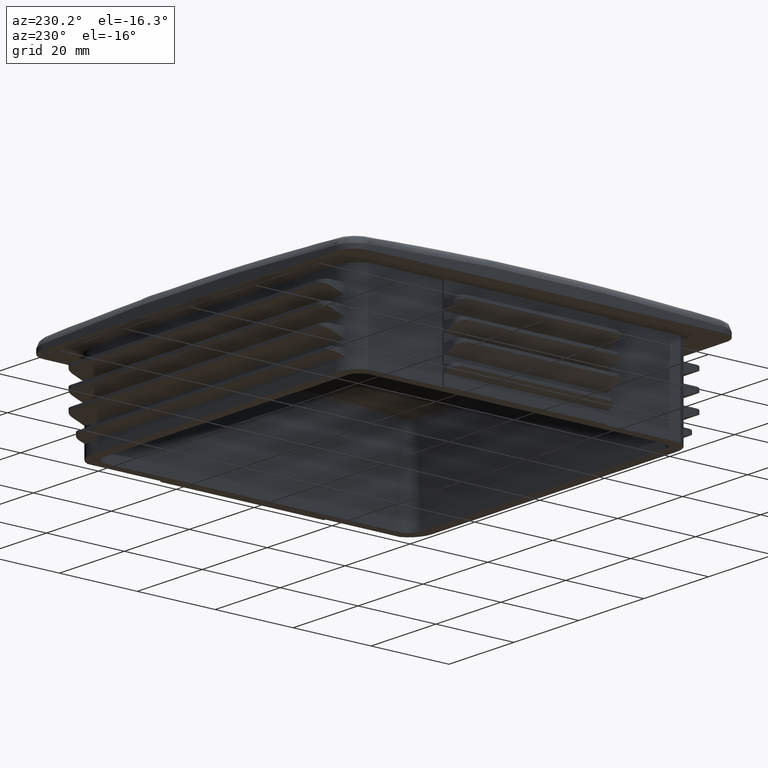
[diagram: clean part render]
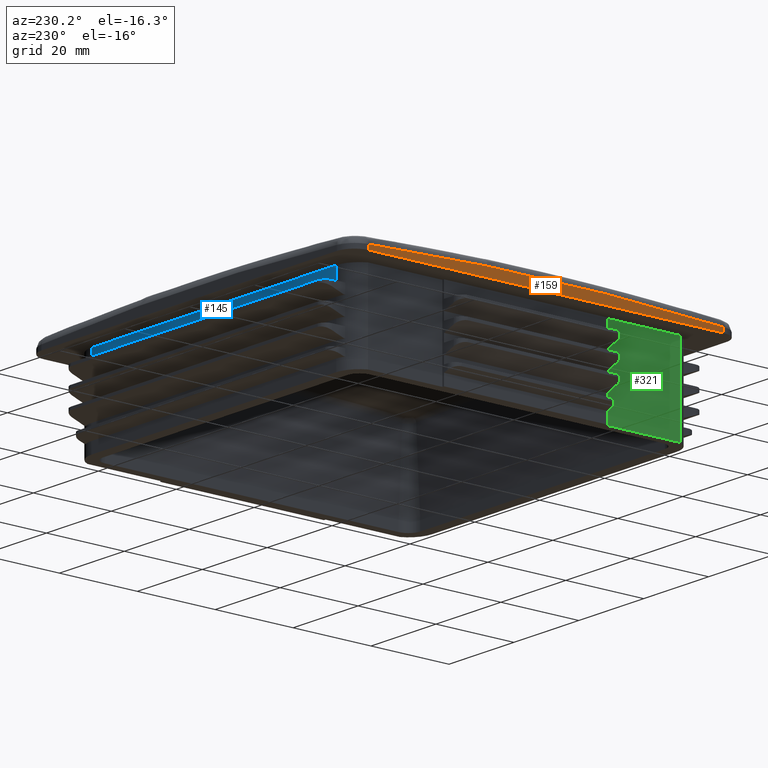
[diagram: same view with three faces highlighted in distinct colors, each labeled with its STEP entity id]
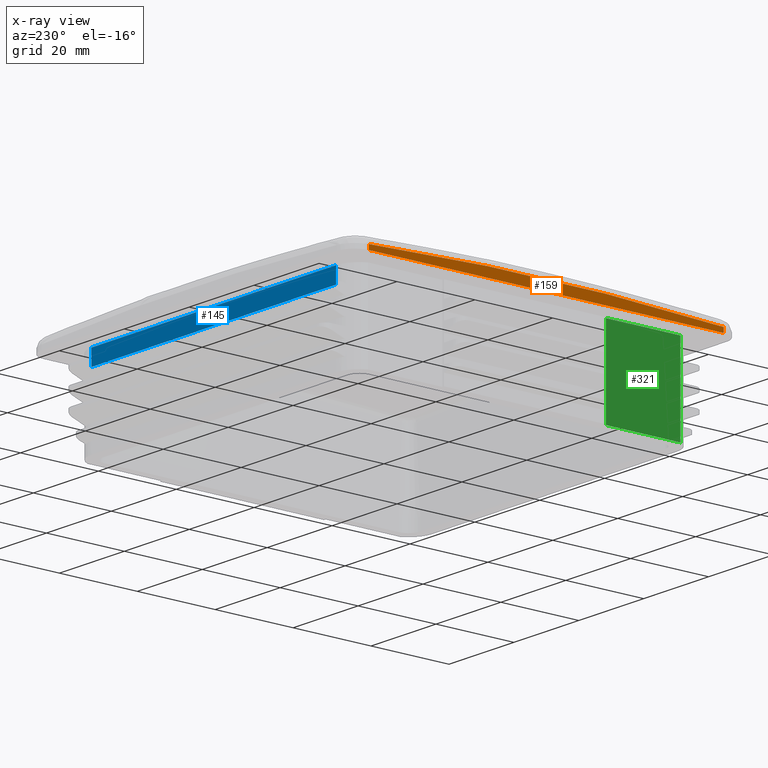
[diagram: x-ray of the same camera — body ghosted, the three highlighted faces saturated]
A machine part, auxiliary view with three faces highlighted in distinct colors.
The next image is the same camera in x-ray (body ghosted, the three faces saturated) — at least one of them is partly hidden behind the body in this view.
Their STEP definitions:

[orange] entity #159 — the highlighted planar face has unit normal (-1, 0, 0).
#159 = ADVANCED_FACE( '', ( #498 ), #499, .T. );
#498 = FACE_OUTER_BOUND( '', #2840, .T. );
#499 = PLANE( '', #2841 );
#2840 = EDGE_LOOP( '', ( #4062, #4063, #4064, #4065 ) );
#2841 = AXIS2_PLACEMENT_3D( '', #4066, #4067, #4068 );
#4062 = ORIENTED_EDGE( '', *, *, #5531, .T. );
#4063 = ORIENTED_EDGE( '', *, *, #5520, .T. );
#4064 = ORIENTED_EDGE( '', *, *, #5524, .F. );
#4065 = ORIENTED_EDGE( '', *, *, #5565, .T. );
#4066 = CARTESIAN_POINT( '', ( -50.0000000000000, 45.5000000000000, -181.938035759909 ) );
#4067 = DIRECTION( '', ( -1.00000000000000, 0.000000000000000, 0.000000000000000 ) );
#4068 = DIRECTION( '', ( 0.000000000000000, -1.00000000000000, 0.000000000000000 ) );
#5520 = EDGE_CURVE( '', #6260, #6255, #6264, .T. );
#5524 = EDGE_CURVE( '', #6270, #6255, #6271, .T. );
#5531 = EDGE_CURVE( '', #6282, #6260, #6283, .T. );
#5565 = EDGE_CURVE( '', #6270, #6282, #6339, .T. );
#6255 = VERTEX_POINT( '', #7961 );
#6260 = VERTEX_POINT( '', #8056 );
#6264 = B_SPLINE_CURVE_WITH_KNOTS( '', 3, ( #8081, #8082, #8083, #8084, #8085, #8086, #8087, #8088, #8089, #8090, #8091, #8092, #8093, #8094, #8095, #8096, #8097, #8098 ), .UNSPECIFIED., .F., .F., ( 4, 1, 2, 2, 2, 1, 1, 2, 2, 1, 4 ), ( 0.000000000000000, 0.0113850005789610, 0.0227700011579221, 0.0241931262302922, 0.0256162513026623, 0.0284625014474026, 0.0341550017368831, 0.0455400023158441, 0.0683100034737661, 0.0796950040527271, 0.0910800046316881 ), .UNSPECIFIED. );
#6270 = VERTEX_POINT( '', #8194 );
#6271 = LINE( '', #8195, #8196 );
#6282 = VERTEX_POINT( '', #8247 );
#6283 = LINE( '', #8248, #8249 );
#6339 = LINE( '', #8577, #8578 );
#7961 = CARTESIAN_POINT( '', ( -50.0000000000000, 45.5000000000000, 1.22391078343170 ) );
#8056 = CARTESIAN_POINT( '', ( -50.0000000000000, -45.5000000000000, 1.22391078343173 ) );
#8081 = CARTESIAN_POINT( '', ( -50.0000000000000, -45.5000000000000, 1.22391078343173 ) );
#8082 = CARTESIAN_POINT( '', ( -50.0000000000000, -41.7108058635564, 1.44192197895297 ) );
#8083 = CARTESIAN_POINT( '', ( -50.0000000000000, -34.1301384694667, 1.82357634414615 ) );
#8084 = CARTESIAN_POINT( '', ( -50.0000000000000, -26.5449088507306, 2.09639966199070 ) );
#8085 = CARTESIAN_POINT( '', ( -50.0000000000000, -22.2769317905215, 2.21919980063185 ) );
#8086 = CARTESIAN_POINT( '', ( -50.0000000000000, -21.8026942632821, 2.23241835932161 ) );
#8087 = CARTESIAN_POINT( '', ( -50.0000000000000, -20.8541834914221, 2.25800344500244 ) );
#8088 = CARTESIAN_POINT( '', ( -50.0000000000000, -20.3799085881958, 2.27036999615108 ) );
#8089 = CARTESIAN_POINT( '', ( -50.0000000000000, -18.9571281068513, 2.30618889102794 ) );
#8090 = CARTESIAN_POINT( '', ( -50.0000000000000, -16.1116470953440, 2.37270634191143 ) );
#8091 = CARTESIAN_POINT( '', ( -50.0000000000000, -9.47275102439743, 2.49207364158416 ) );
#8092 = CARTESIAN_POINT( '', ( -50.0000000000000, -3.78322800393381, 2.53295004672934 ) );
#8093 = CARTESIAN_POINT( '', ( -50.0000000000000, 7.59453940942068, 2.53281530598412 ) );
#8094 = CARTESIAN_POINT( '', ( -50.0000000000000, 15.1780127495984, 2.42353576095733 ) );
#8095 = CARTESIAN_POINT( '', ( -50.0000000000000, 26.5506709871140, 2.09619245207723 ) );
#8096 = CARTESIAN_POINT( '', ( -50.0000000000000, 34.1315926119991, 1.82349259552902 ) );
#8097 = CARTESIAN_POINT( '', ( -50.0000000000000, 41.7108142742815, 1.44192149504216 ) );
#8098 = CARTESIAN_POINT( '', ( -50.0000000000000, 45.5000000000000, 1.22391078343179 ) );
#8194 = CARTESIAN_POINT( '', ( -50.0000000000000, 45.5000000000000, -1.83231725690673E-015 ) );
#8195 = CARTESIAN_POINT( '', ( -50.0000000000000, 45.5000000000000, -181.938035759909 ) );
#8196 = VECTOR( '', #10727, 1000.00000000000 );
#8247 = CARTESIAN_POINT( '', ( -50.0000000000000, -45.5000000000000, 0.000000000000000 ) );
#8248 = CARTESIAN_POINT( '', ( -50.0000000000000, -45.5000000000000, -181.938035759909 ) );
#8249 = VECTOR( '', #10736, 1000.00000000000 );
#8577 = CARTESIAN_POINT( '', ( -50.0000000000000, 5.83930393559495E-032, 9.53662198039177E-016 ) );
#8578 = VECTOR( '', #10780, 1000.00000000000 );
#10727 = DIRECTION( '', ( 0.000000000000000, 0.000000000000000, 1.00000000000000 ) );
#10736 = DIRECTION( '', ( 0.000000000000000, 0.000000000000000, 1.00000000000000 ) );
#10780 = DIRECTION( '', ( 0.000000000000000, -1.00000000000000, 6.12303176911189E-017 ) );

[blue] entity #145 — the highlighted planar face has unit normal (0, 1, 0).
#145 = ADVANCED_FACE( '', ( #470 ), #471, .T. );
#470 = FACE_OUTER_BOUND( '', #2812, .T. );
#471 = PLANE( '', #2813 );
#2812 = EDGE_LOOP( '', ( #3916, #3917, #3918, #3919 ) );
#2813 = AXIS2_PLACEMENT_3D( '', #3920, #3921, #3922 );
#3916 = ORIENTED_EDGE( '', *, *, #5648, .F. );
#3917 = ORIENTED_EDGE( '', *, *, #5649, .T. );
#3918 = ORIENTED_EDGE( '', *, *, #5494, .T. );
#3919 = ORIENTED_EDGE( '', *, *, #5564, .F. );
#3920 = CARTESIAN_POINT( '', ( 37.7000000000000, 43.7000000000000, -22.0000000000000 ) );
#3921 = DIRECTION( '', ( 0.000000000000000, 1.00000000000000, 0.000000000000000 ) );
#3922 = DIRECTION( '', ( 1.00000000000000, 0.000000000000000, 0.000000000000000 ) );
#5494 = EDGE_CURVE( '', #6214, #6212, #6215, .T. );
#5564 = EDGE_CURVE( '', #6336, #6212, #6338, .T. );
#5648 = EDGE_CURVE( '', #6476, #6336, #6477, .T. );
#5649 = EDGE_CURVE( '', #6476, #6214, #6478, .T. );
#6212 = VERTEX_POINT( '', #7906 );
#6214 = VERTEX_POINT( '', #7908 );
#6215 = LINE( '', #7909, #7910 );
#6336 = VERTEX_POINT( '', #8573 );
#6338 = LINE( '', #8575, #8576 );
#6476 = VERTEX_POINT( '', #9204 );
#6477 = LINE( '', #9205, #9206 );
#6478 = LINE( '', #9207, #9208 );
#7906 = CARTESIAN_POINT( '', ( -37.7000000000000, 43.7000000000000, 0.000000000000000 ) );
#7908 = CARTESIAN_POINT( '', ( -37.7000000000000, 43.7000000000000, -4.00000000000000 ) );
#7909 = CARTESIAN_POINT( '', ( -37.7000000000000, 43.7000000000000, -22.0000000000000 ) );
#7910 = VECTOR( '', #10679, 1000.00000000000 );
#8573 = CARTESIAN_POINT( '', ( 37.7000000000000, 43.7000000000000, 0.000000000000000 ) );
#8575 = CARTESIAN_POINT( '', ( 37.7000000000000, 43.7000000000000, 0.000000000000000 ) );
#8576 = VECTOR( '', #10779, 1000.00000000000 );
#9204 = CARTESIAN_POINT( '', ( 37.7000000000000, 43.7000000000000, -4.00000000000000 ) );
#9205 = CARTESIAN_POINT( '', ( 37.7000000000000, 43.7000000000000, -22.0000000000000 ) );
#9206 = VECTOR( '', #10819, 1000.00000000000 );
#9207 = CARTESIAN_POINT( '', ( 37.7000000000000, 43.7000000000000, -4.00000000000000 ) );
#9208 = VECTOR( '', #10820, 1000.00000000000 );
#10679 = DIRECTION( '', ( 0.000000000000000, 0.000000000000000, 1.00000000000000 ) );
#10779 = DIRECTION( '', ( -1.00000000000000, 0.000000000000000, 0.000000000000000 ) );
#10819 = DIRECTION( '', ( 0.000000000000000, 0.000000000000000, 1.00000000000000 ) );
#10820 = DIRECTION( '', ( -1.00000000000000, 0.000000000000000, 2.55172454101166E-031 ) );

[green] entity #321 — the highlighted planar face has unit normal (1, 0, 0).
#321 = ADVANCED_FACE( '', ( #835 ), #836, .F. );
#835 = FACE_OUTER_BOUND( '', #3390, .T. );
#836 = PLANE( '', #3391 );
#3390 = EDGE_LOOP( '', ( #5399, #5400, #5401, #5402 ) );
#3391 = AXIS2_PLACEMENT_3D( '', #5403, #5404, #5405 );
#5399 = ORIENTED_EDGE( '', *, *, #5426, .T. );
#5400 = ORIENTED_EDGE( '', *, *, #5678, .F. );
#5401 = ORIENTED_EDGE( '', *, *, #5554, .F. );
#5402 = ORIENTED_EDGE( '', *, *, #6038, .T. );
#5403 = CARTESIAN_POINT( '', ( -43.2000000000000, -21.0000000000000, 0.000000000000000 ) );
#5404 = DIRECTION( '', ( 1.00000000000000, 5.83728203774415E-017, 0.000000000000000 ) );
#5405 = DIRECTION( '', ( -5.83728203774415E-017, 1.00000000000000, 0.000000000000000 ) );
#5426 = EDGE_CURVE( '', #6098, #6096, #6099, .T. );
#5554 = EDGE_CURVE( '', #6316, #6318, #6319, .T. );
#5678 = EDGE_CURVE( '', #6318, #6096, #6526, .T. );
#6038 = EDGE_CURVE( '', #6316, #6098, #7105, .T. );
#6096 = VERTEX_POINT( '', #7179 );
#6098 = VERTEX_POINT( '', #7181 );
#6099 = LINE( '', #7182, #7183 );
#6316 = VERTEX_POINT( '', #8545 );
#6318 = VERTEX_POINT( '', #8548 );
#6319 = LINE( '', #8549, #8550 );
#6526 = LINE( '', #9276, #9277 );
#7105 = LINE( '', #10504, #10505 );
#7179 = CARTESIAN_POINT( '', ( -43.2000000000000, -40.0979157616564, -22.0000000000000 ) );
#7181 = CARTESIAN_POINT( '', ( -43.2000000000000, -21.0000000000000, -22.0000000000000 ) );
#7182 = CARTESIAN_POINT( '', ( -43.2000000000000, -21.0000000000000, -22.0000000000000 ) );
#7183 = VECTOR( '', #10606, 1000.00000000000 );
#8545 = CARTESIAN_POINT( '', ( -43.2000000000000, -21.0000000000000, 0.000000000000000 ) );
#8548 = CARTESIAN_POINT( '', ( -43.2000000000000, -40.0979157616564, 0.000000000000000 ) );
#8549 = CARTESIAN_POINT( '', ( -43.2000000000000, -21.0000000000000, 0.000000000000000 ) );
#8550 = VECTOR( '', #10763, 1000.00000000000 );
#9276 = CARTESIAN_POINT( '', ( -43.2000000000000, -40.0979157616564, 0.000000000000000 ) );
#9277 = VECTOR( '', #10865, 1000.00000000000 );
#10504 = CARTESIAN_POINT( '', ( -43.2000000000000, -21.0000000000000, 0.000000000000000 ) );
#10505 = VECTOR( '', #11344, 1000.00000000000 );
#10606 = DIRECTION( '', ( 5.83728203774415E-017, -1.00000000000000, 0.000000000000000 ) );
#10763 = DIRECTION( '', ( 5.83728203774415E-017, -1.00000000000000, 0.000000000000000 ) );
#10865 = DIRECTION( '', ( 0.000000000000000, 0.000000000000000, -1.00000000000000 ) );
#11344 = DIRECTION( '', ( 0.000000000000000, 0.000000000000000, -1.00000000000000 ) );